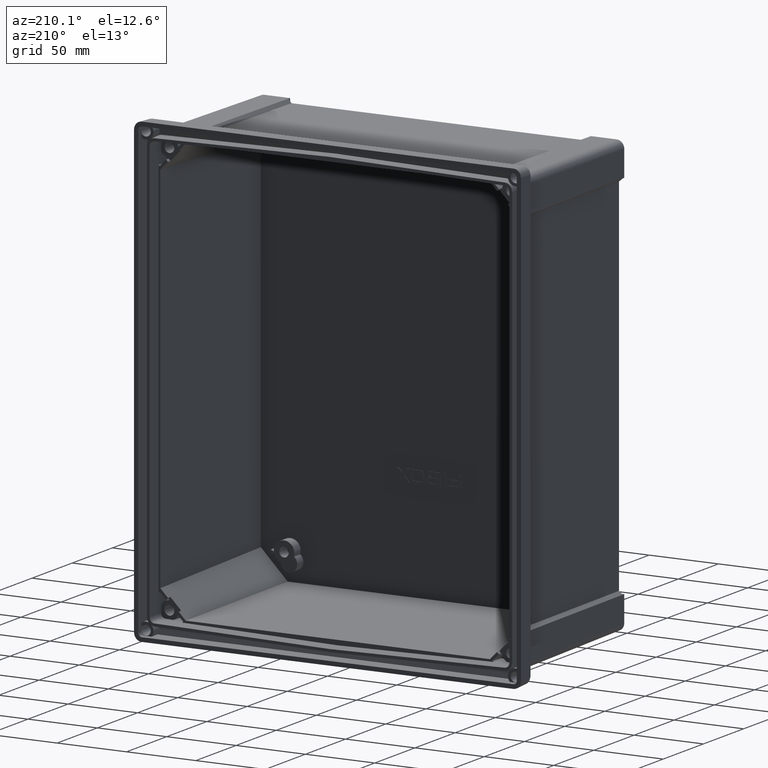
[diagram: clean part render]
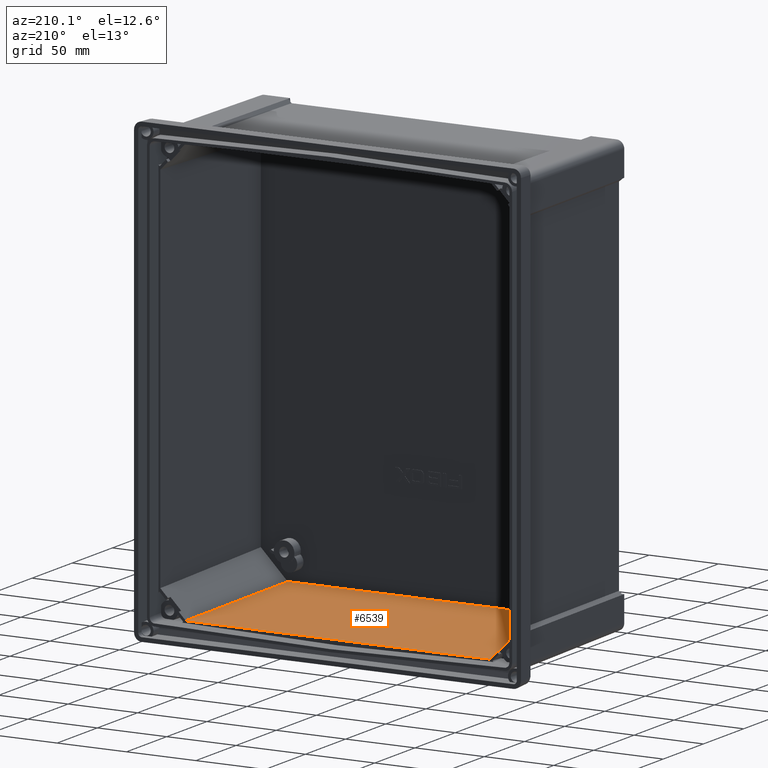
[diagram: same view with one face highlighted and labeled with its STEP entity id]
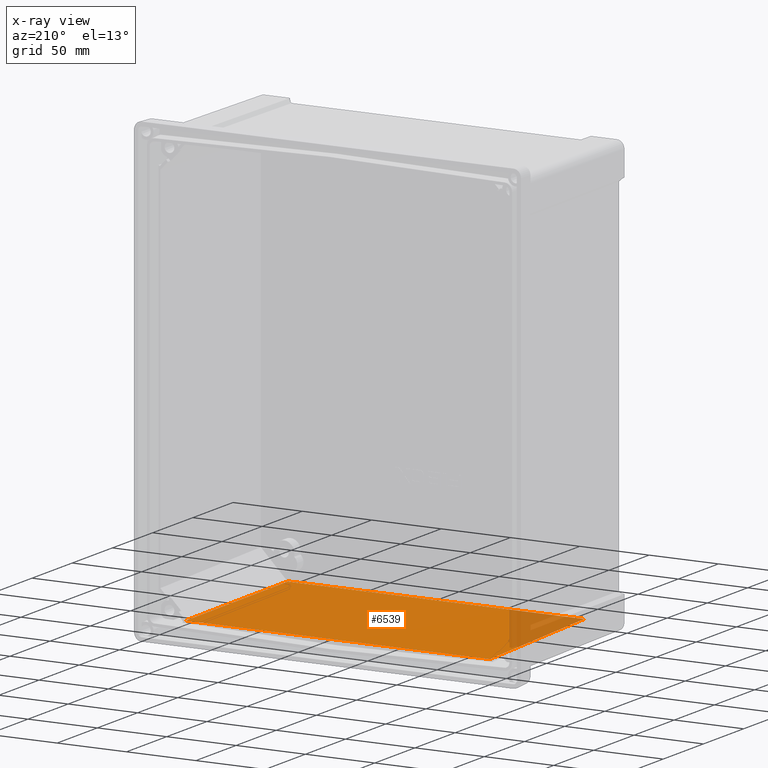
[diagram: x-ray of the same camera — body ghosted, the highlighted face saturated]
A machine part, auxiliary view. The second image highlights one B-rep face of the part: STEP entity #6539.
The next image is the same camera in x-ray: the body ghosted, the highlighted face saturated — about 10% of this face is hidden behind the body in this view.
In plain terms, the highlighted planar face has unit normal (-0, 0.014, 0.9999).
Its self-contained STEP definition (entity closure, byte-faithful):
#173 = ORIENTED_EDGE ( 'NONE', *, *, #14120, .F. ) ;
#451 = CARTESIAN_POINT ( 'NONE',  ( 255.9315720395415800, -134.5000000000000000, -150.7616114425672200 ) ) ;
#713 = VERTEX_POINT ( 'NONE', #10832 ) ;
#905 = CARTESIAN_POINT ( 'NONE',  ( -106.9639594981426100, -131.0790465839216400, -150.8093800673883300 ) ) ;
#957 = CARTESIAN_POINT ( 'NONE',  ( 106.8844255302944900, -134.6630840029497400, -150.7593342123323300 ) ) ;
#1082 = CARTESIAN_POINT ( 'NONE',  ( 109.6795645159462500, -12.84933532198745000, -152.4602855411182800 ) ) ;
#1668 = VERTEX_POINT ( 'NONE', #6520 ) ;
#1689 = ORIENTED_EDGE ( 'NONE', *, *, #5483, .F. ) ;
#1797 = EDGE_CURVE ( 'NONE', #11027, #713, #4542, .T. ) ;
#2404 = VECTOR ( 'NONE', #12832, 1000.000000000000000 ) ;
#2872 = EDGE_CURVE ( 'NONE', #11027, #5078, #10881, .T. ) ;
#2895 = PLANE ( 'NONE',  #11093 ) ;
#3048 = ORIENTED_EDGE ( 'NONE', *, *, #1797, .T. ) ;
#3420 = CARTESIAN_POINT ( 'NONE',  ( 106.8830331362330100, -134.9000000000000300, -150.7560260259875500 ) ) ;
#4096 = DIRECTION ( 'NONE',  ( -1.100901257238360200E-019, 0.01396218033913798100, 0.9999025240093043500 ) ) ;
#4288 = FACE_OUTER_BOUND ( 'NONE', #10118, .T. ) ;
#4311 = DIRECTION ( 'NONE',  ( -0.02296059458777131200, -0.9996389205047319100, 0.01395849950067573400 ) ) ;
#4542 = LINE ( 'NONE', #5221, #14748 ) ;
#4667 = CARTESIAN_POINT ( 'NONE',  ( -106.8780018289438400, -135.7560774682165500, -150.7440721527764000 ) ) ;
#5078 = VERTEX_POINT ( 'NONE', #10705 ) ;
#5221 = CARTESIAN_POINT ( 'NONE',  ( 255.9315720395415800, -12.84933532198744800, -152.4602855411182500 ) ) ;
#5328 = DIRECTION ( 'NONE',  ( -0.02296059458777131200, 0.9996389205047319100, -0.01395849950067573300 ) ) ;
#5466 = VERTEX_POINT ( 'NONE', #3420 ) ;
#5483 = EDGE_CURVE ( 'NONE', #7450, #1668, #8057, .T. ) ;
#5984 = VECTOR ( 'NONE', #8271, 1000.000000000000000 ) ;
#6111 = LINE ( 'NONE', #957, #2404 ) ;
#6519 = DIRECTION ( 'NONE',  ( 0.0000000000000000000, -0.9999025240093042400, 0.01396218033913797900 ) ) ;
#6520 = CARTESIAN_POINT ( 'NONE',  ( -106.8853840016518100, -134.5000000000000000, -150.7616114425672200 ) ) ;
#6539 = ADVANCED_FACE ( 'NONE', ( #4288 ), #2895, .T. ) ;
#6646 = ORIENTED_EDGE ( 'NONE', *, *, #7164, .T. ) ;
#7045 = EDGE_CURVE ( 'NONE', #1668, #713, #12047, .T. ) ;
#7164 = EDGE_CURVE ( 'NONE', #5466, #5078, #6111, .T. ) ;
#7450 = VERTEX_POINT ( 'NONE', #12558 ) ;
#8041 = ORIENTED_EDGE ( 'NONE', *, *, #7045, .F. ) ;
#8057 = LINE ( 'NONE', #4667, #5984 ) ;
#8271 = DIRECTION ( 'NONE',  ( -0.005876489194934993000, 0.9998852589806953600, -0.01396193925820270000 ) ) ;
#8597 = CARTESIAN_POINT ( 'NONE',  ( 106.8853840016516700, -134.9000000000000300, -150.7560260259875500 ) ) ;
#9797 = DIRECTION ( 'NONE',  ( -1.000000000000000000, -7.884880659737483000E-018, -0.0000000000000000000 ) ) ;
#10118 = EDGE_LOOP ( 'NONE', ( #3048, #8041, #1689, #173, #6646, #12958 ) ) ;
#10705 = CARTESIAN_POINT ( 'NONE',  ( 106.8853840016516700, -134.5000000000000000, -150.7616114425672200 ) ) ;
#10832 = CARTESIAN_POINT ( 'NONE',  ( -109.6795645159463500, -12.84933532198745000, -152.4602855411182800 ) ) ;
#10881 = LINE ( 'NONE', #12557, #12541 ) ;
#11027 = VERTEX_POINT ( 'NONE', #1082 ) ;
#11093 = AXIS2_PLACEMENT_3D ( 'NONE', #451, #4096, #6519 ) ;
#11727 = VECTOR ( 'NONE', #13340, 1000.000000000000000 ) ;
#12047 = LINE ( 'NONE', #905, #14108 ) ;
#12541 = VECTOR ( 'NONE', #4311, 1000.000000000000000 ) ;
#12557 = CARTESIAN_POINT ( 'NONE',  ( 106.9639594981425300, -131.0790465839216400, -150.8093800673883300 ) ) ;
#12558 = CARTESIAN_POINT ( 'NONE',  ( -106.8830331362331500, -134.9000000000000300, -150.7560260259875500 ) ) ;
#12653 = LINE ( 'NONE', #8597, #11727 ) ;
#12832 = DIRECTION ( 'NONE',  ( 0.005876489194934975600, 0.9998852589806953600, -0.01396193925820270500 ) ) ;
#12958 = ORIENTED_EDGE ( 'NONE', *, *, #2872, .F. ) ;
#13340 = DIRECTION ( 'NONE',  ( -1.000000000000000000, 0.0000000000000000000, 0.0000000000000000000 ) ) ;
#14108 = VECTOR ( 'NONE', #5328, 1000.000000000000000 ) ;
#14120 = EDGE_CURVE ( 'NONE', #5466, #7450, #12653, .T. ) ;
#14748 = VECTOR ( 'NONE', #9797, 1000.000000000000000 ) ;